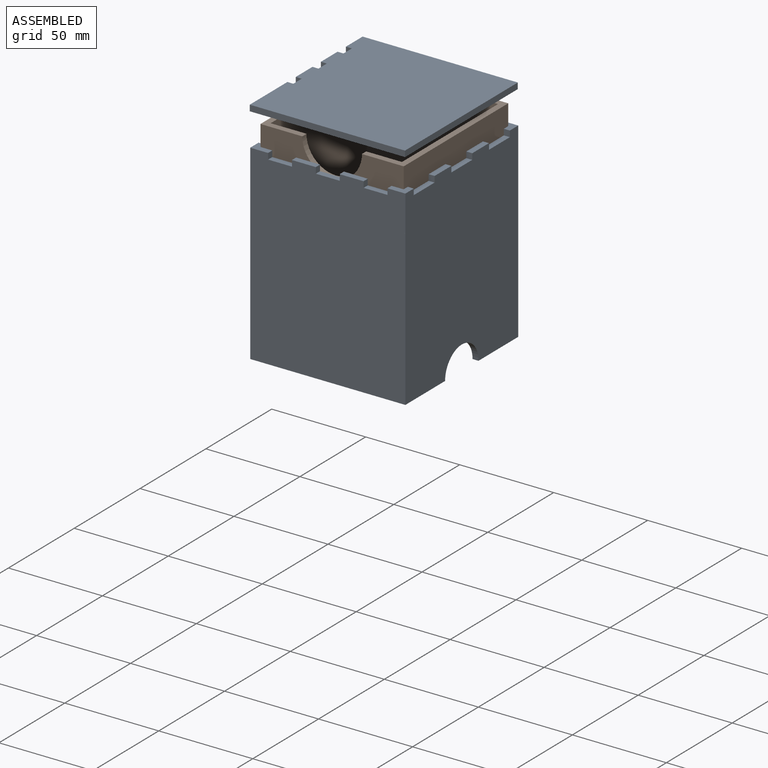
[diagram: assembled view]
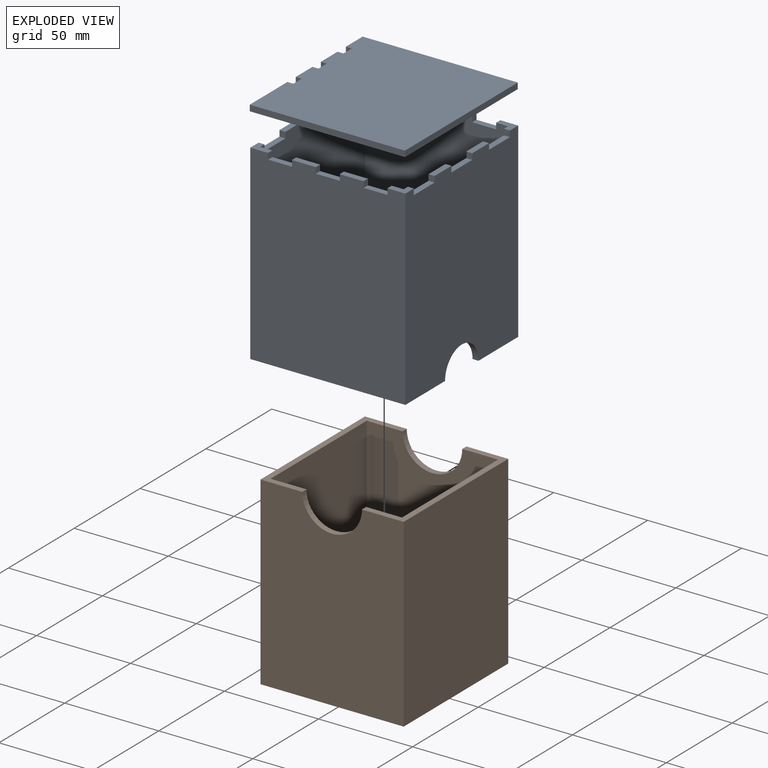
[diagram: exploded view]
GUIDED TOUR — MATED ASSEMBLY WITH SUBASSEMBLIES (Onshape document 00e461404087c15854c8ce74, AutoMate assembly 00e461404087c15854c8ce74_b9351771f8d7acd07a54468d_1669efc70e379d00489d12cd_default)

This assembly has 10 component occurrences arranged in 2 top-level units: 0 individual components plus 2 subassemblies (S0, S1). The tour has two levels: first the top level, where each subassembly is treated as one rigid unit; then each subassembly is toured internally in its own section (nesting deeper than one subassembly level is flattened into its subassembly's section).

Components are labeled P0..P9 across the whole record; subassembly units are labeled S0..S1. A mate is a constraint between two units; its type names the relative motion it leaves free:
  FASTENED — locks the two components together rigidly (no relative motion),
  SLIDER — leaves translation along the listed axis free.
Axis/direction vectors are unit vectors and 'through' points are millimeter coordinates, both in the assembly's world frame.

TOP-LEVEL MATES (between units; each subassembly's internal mates are listed in its own section)
  1. SLIDER "Slider 1": S0 <-> S1, axis (0.000, 0.000, 1.000) through (0.00, 0.00, 104.78) mm

TOP-LEVEL ASSEMBLY ORDER
  1. S0 — the base component [order verified]
  2. S1 [order verified]
Order-tag legend:
  [order verified] — this step's position reverses a verified removal order: the component was checked to insert without passing through the ones already placed.

Of the 10 component occurrences, 9 carry the full construction recipe — the FeatureScript program that regenerates the part's solid from scratch; the rest are supplied as boundary geometry only. Each toured unit is shown spotlighted twice — assembled, then exploded with a leader line back to its socket (green = recipe-attached component, orange = geometry-only, blue = subassembly unit; the rest desaturated gray).
NOTE — this tour is split across 2 documents so each fits a 32k-token context. This is document 1: the component sections continue in the remaining 1 document, each repeating the header above.
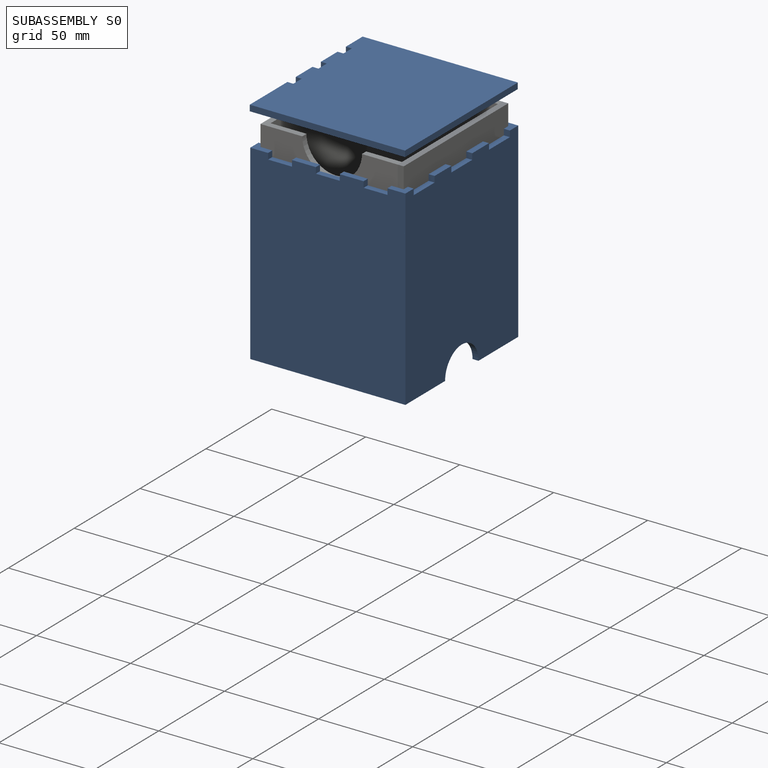
[diagram: subassembly S0 — assembled]
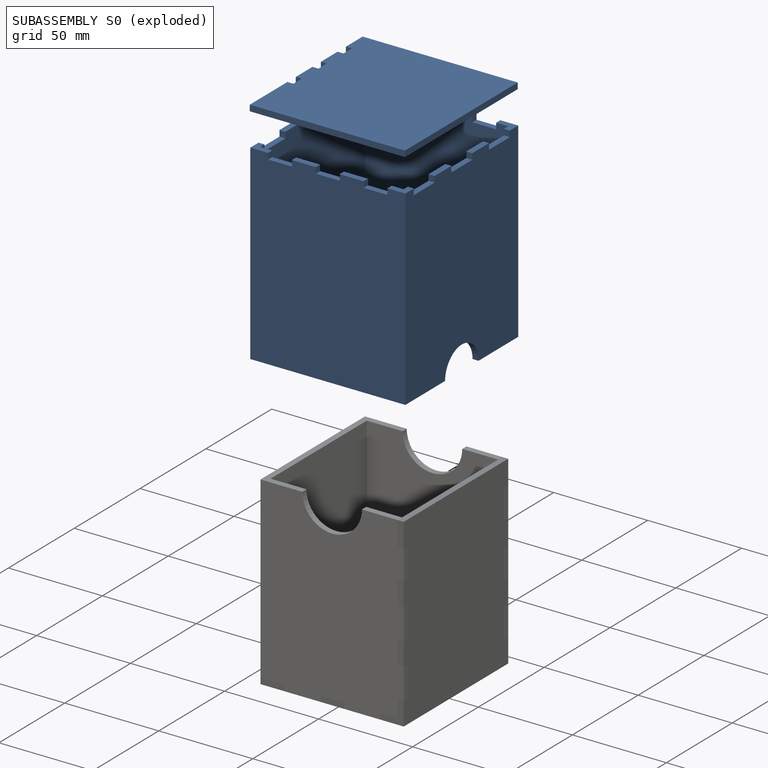
[diagram: subassembly S0 — exploded]
SUBASSEMBLY S0 — 5 components (P0, P1, P6, P7, P9), of which 4 recipe-attached; toured below.
Held by: SLIDER mate "Slider 1" to S1.
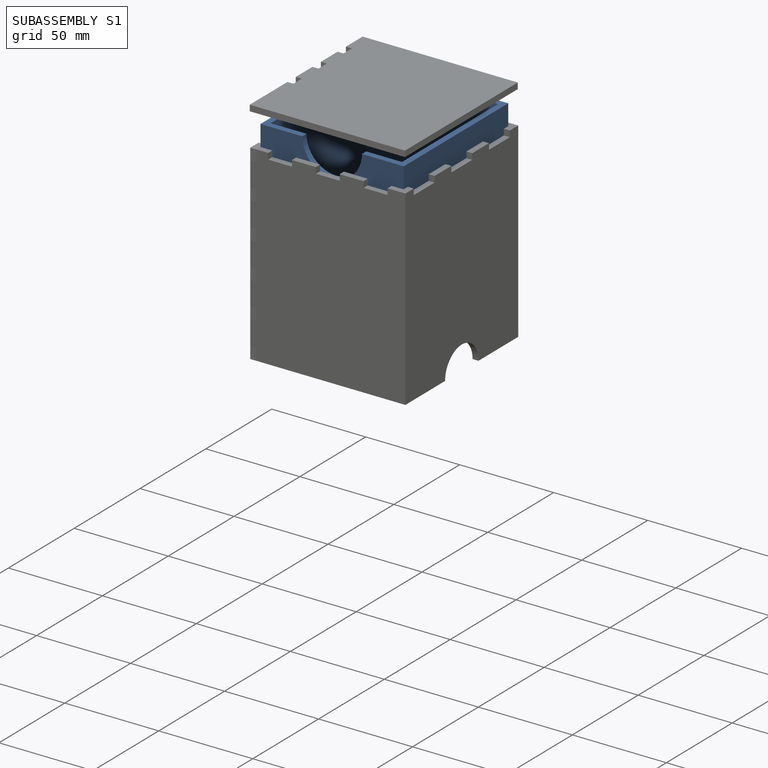
[diagram: subassembly S1 — assembled]
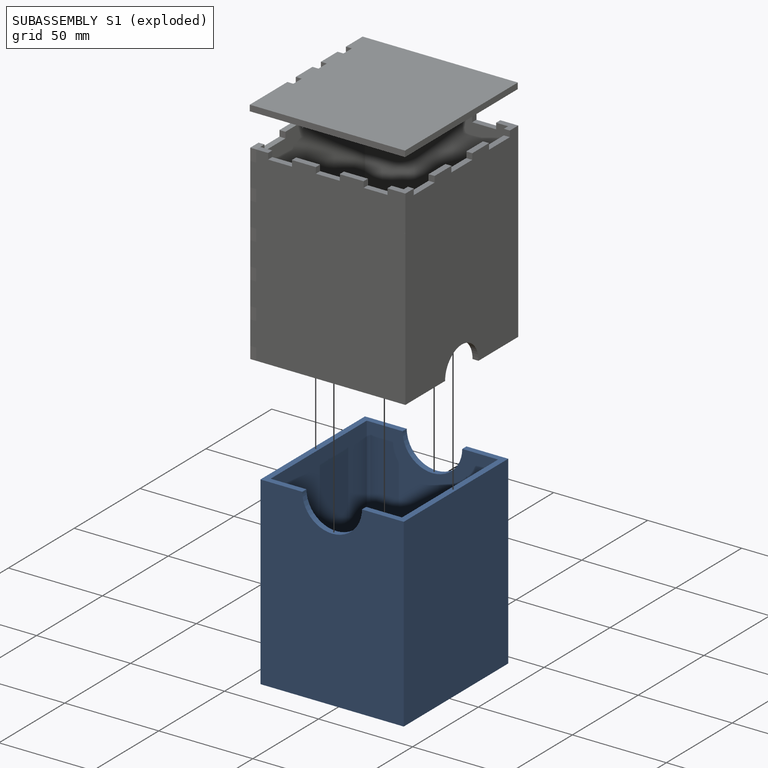
[diagram: subassembly S1 — exploded]
SUBASSEMBLY S1 — 5 components (P2, P3, P4, P5, P8), of which 5 recipe-attached; toured below.
Held by: SLIDER mate "Slider 1" to S0.
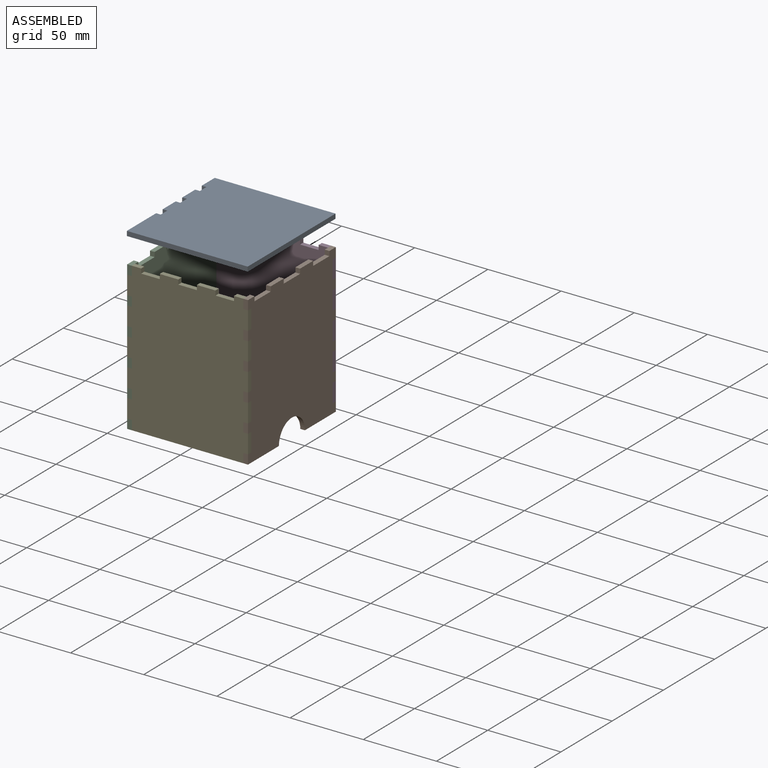
[diagram: subassembly S0 — assembled view]
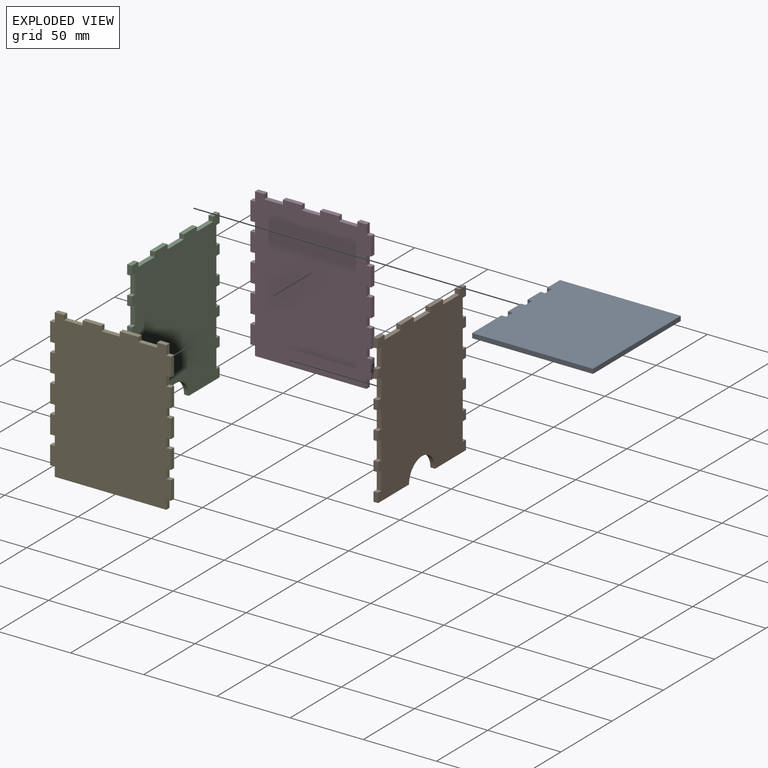
[diagram: subassembly S0 — exploded view]
SUBASSEMBLY S0 TOUR — 5 components, shown here in isolation at its own camera.

INTERNAL MATES
  1. FASTENED "Fastened 1": P1 <-> P7, direction (1.000, 0.000, 0.000) through (41.54, 39.21, -4.43) mm
  2. FASTENED "Fastened 2": P6 <-> P7, direction (0.000, 1.000, 0.000) through (-37.84, 42.38, 62.24) mm
  3. FASTENED "Fastened 3": P6 <-> P9, direction (0.000, -1.000, 0.000) through (-37.84, -43.34, 62.24) mm
  4. FASTENED "Fastened 3": P6 <-> P9, direction (0.000, -1.000, 0.000) through (-37.84, -43.34, 62.24) mm
  5. FASTENED "Fastened 2": P6 <-> P7, direction (0.000, 1.000, 0.000) through (-37.84, 42.38, 62.24) mm
  6. FASTENED "Fastened 1": P1 <-> P7, direction (1.000, 0.000, 0.000) through (41.54, 39.21, -4.43) mm

ASSEMBLY ORDER (within the subassembly)
  1. P6 — the base component [order verified]
  2. P7 [order verified]
  3. P9 [order verified]
  4. P1 [order verified]
  5. P0 [order verified]
Order-tag legend:
  [order verified] — this step's position reverses a verified removal order: the component was checked to insert without passing through the ones already placed.
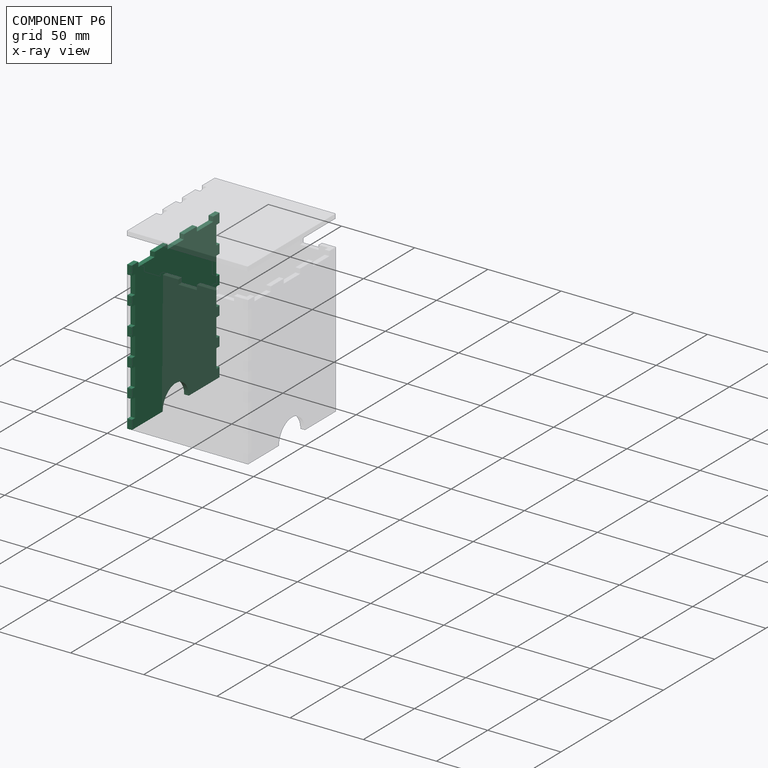
[diagram: component P6 — x-ray view]
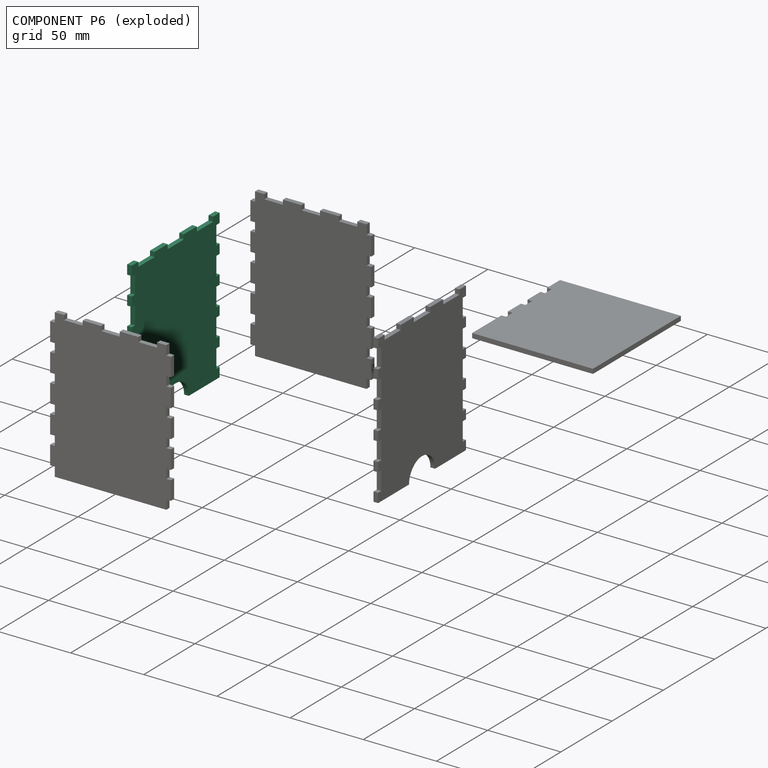
[diagram: component P6 — exploded]
COMPONENT P6 — same part as P1 (CADFS 00515019); its construction recipe is shown at P1.
Held by: FASTENED mate "Fastened 2" to P7; FASTENED mate "Fastened 3" to P9; FASTENED mate "Fastened 3" to P9; FASTENED mate "Fastened 2" to P7.
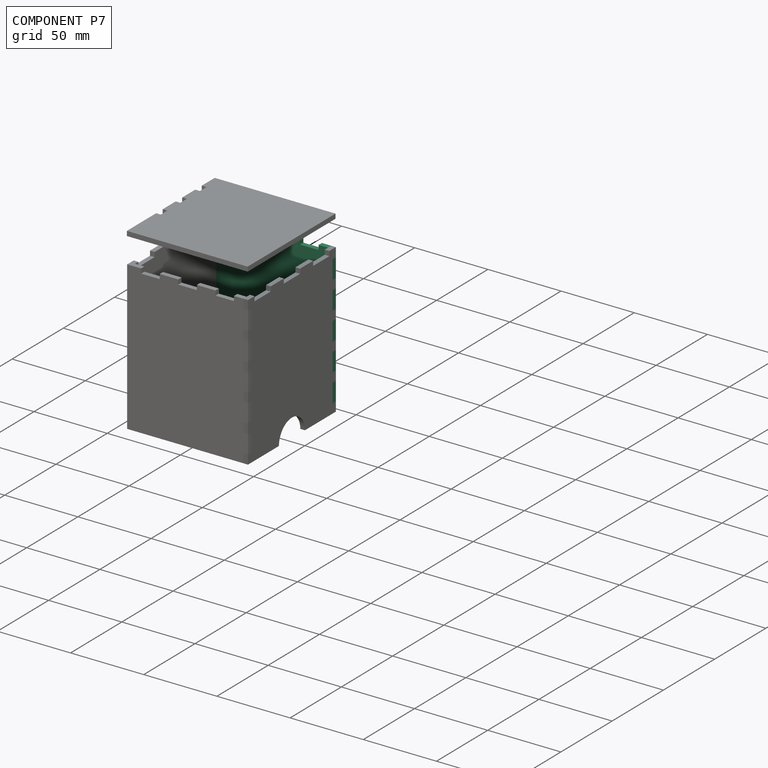
[diagram: component P7 — assembled]
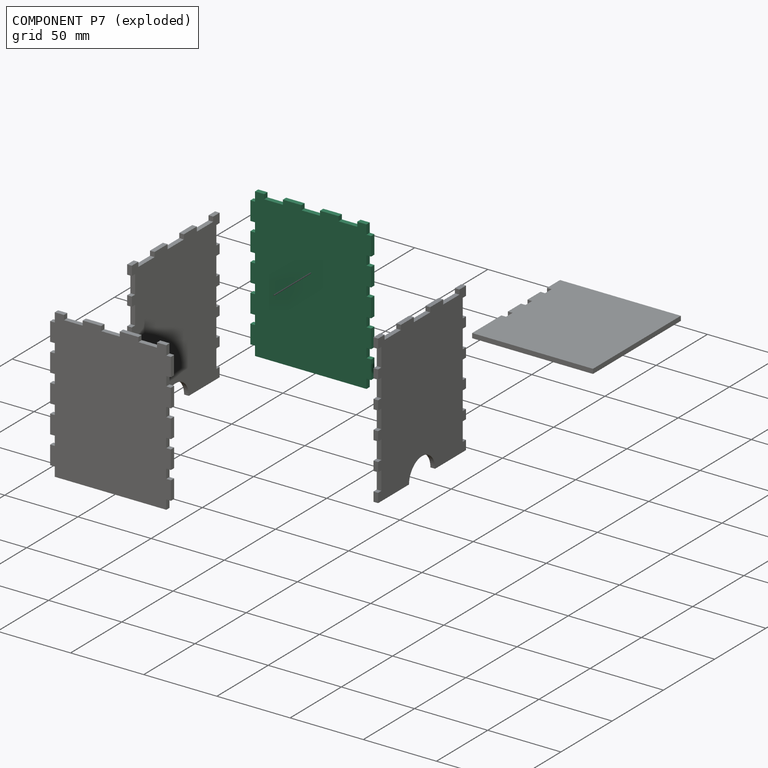
[diagram: component P7 — exploded]
COMPONENT P7 — recipe-attached (CADFS 00515017, mesh-verified: the recipe's output STEP matches this component's geometry to below the mesh-comparison resolution (tessellation chordal tolerance ~0.196 mm)).
Held by: FASTENED mate "Fastened 1" to P1; FASTENED mate "Fastened 2" to P6; FASTENED mate "Fastened 2" to P6; FASTENED mate "Fastened 1" to P1.
Construction recipe (FeatureScript — the CAD program that rebuilds this solid; sketch coordinates are in the units given by the * unit suffixes, e.g. mm):

FeatureScript 1511;
import(path : "onshape/std/geometry.fs", version : "1511.0");
import(path : "onshape/std/common.fs", version : "1511.0");
const mm = millimeter;
const VERTEX = EntityType.VERTEX;
const EDGE = EntityType.EDGE;
const FACE = EntityType.FACE;
const BODY = EntityType.BODY;
function v(x, y){return vector(x, y);}
function OD(order){return orderDisambiguation(order);}
function OSD(set){return originalSetDisambiguation(set);}
function TD(topology){return topologyDisambiguation(topology);}
function TDD(query){return trueDependencyDisambiguation(query);}
function sQuery(a, b, c) {return sketchEntityQuery(a, b, c);}

annotation { "Feature Type Name" : "Feature", "Feature Type Description" : "" }
export const myFeature = defineFeature(function(context is Context, id is Id, definition is map)
    precondition{}
    {
        {
            var Q0;
            Q0=qCreatedBy(makeId("Front.planeOp"),FACE);
            var sketch = newSketch(context, id + "F0", { "sketchPlane" : qUnion([Q0])});
            skLineSegment(sketch, "E0.bottom", {"start": v(-41.28, 50.8) * mm, "end": v(41.27, 50.8) * mm});
            skLineSegment(sketch, "E0.top", {"start": v(-41.27, -50.8) * mm, "end": v(41.28, -50.8) * mm});
            skLineSegment(sketch, "E0.left", {"start": v(-41.28, 50.8) * mm, "end": v(-41.27, -50.8) * mm});
            skLineSegment(sketch, "E0.right", {"start": v(41.27, 50.8) * mm, "end": v(41.28, -50.8) * mm});
            skSolve(sketch);
        }
        {
            var Q0;
            Q0=makeQuery(id+"F0.imprint","IMPRINT",FACE,{"disambiguationData":[TD([[makeQuery(id+"F0.imprint","IMPRINT",EDGE,{"derivedFrom":sQuery(id+"F0.wireOp",EDGE,"E0.bottom")}),-1.0]])]});
            extrude(context, id + "F1", {"entities" : qUnion([Q0]), "depth" : 3.17 * mm, "offsetDistance" : 25.4 * mm});
        }
        {
            var Q0;
            Q0=makeQuery(id+"F1.opExtrude","CAP_FACE",FACE,{"disambiguationData":[OSD([sQuery(id+"F0.wireOp",EDGE,"E0.bottom"),sQuery(id+"F0.wireOp",EDGE,"E0.top"),sQuery(id+"F0.wireOp",EDGE,"E0.left"),sQuery(id+"F0.wireOp",EDGE,"E0.right")])],"isStart":false});
            var sketch = newSketch(context, id + "F2", { "sketchPlane" : qUnion([Q0])});
            skLineSegment(sketch, "E1.bottom", {"start": v(-41.27, -50.8) * mm, "end": v(-38.1, -50.8) * mm});
            skLineSegment(sketch, "E1.top", {"start": v(-41.28, -44.45) * mm, "end": v(-38.1, -44.45) * mm});
            skLineSegment(sketch, "E1.left", {"start": v(-41.27, -50.8) * mm, "end": v(-41.27, -44.45) * mm});
            skLineSegment(sketch, "E1.right", {"start": v(-38.1, -50.8) * mm, "end": v(-38.1, -44.45) * mm});
            skLineSegment(sketch, "E2.0.1.0", {"start": v(-41.28, -25.4) * mm, "end": v(-38.1, -25.4) * mm});
            skLineSegment(sketch, "E2.0.1.1", {"start": v(-41.27, -31.75) * mm, "end": v(-38.1, -31.75) * mm});
            skLineSegment(sketch, "E2.0.1.2", {"start": v(-41.27, -31.75) * mm, "end": v(-41.27, -25.4) * mm});
            skLineSegment(sketch, "E2.0.1.3", {"start": v(-38.1, -31.75) * mm, "end": v(-38.1, -25.4) * mm});
            skLineSegment(sketch, "E2.0.2.0", {"start": v(-41.28, -6.35) * mm, "end": v(-38.1, -6.35) * mm});
            skLineSegment(sketch, "E2.0.2.1", {"start": v(-41.27, -12.7) * mm, "end": v(-38.1, -12.7) * mm});
            skLineSegment(sketch, "E2.0.2.2", {"start": v(-41.27, -12.7) * mm, "end": v(-41.27, -6.35) * mm});
            skLineSegment(sketch, "E2.0.2.3", {"start": v(-38.1, -12.7) * mm, "end": v(-38.1, -6.35) * mm});
            skLineSegment(sketch, "E2.0.3.0", {"start": v(-41.28, 12.7) * mm, "end": v(-38.1, 12.7) * mm});
            skLineSegment(sketch, "E2.0.3.1", {"start": v(-41.27, 6.35) * mm, "end": v(-38.1, 6.35) * mm});
            skLineSegment(sketch, "E2.0.3.2", {"start": v(-41.27, 6.35) * mm, "end": v(-41.27, 12.7) * mm});
            skLineSegment(sketch, "E2.0.3.3", {"start": v(-38.1, 6.35) * mm, "end": v(-38.1, 12.7) * mm});
            skLineSegment(sketch, "E2.0.4.0", {"start": v(-41.28, 31.75) * mm, "end": v(-38.1, 31.75) * mm});
            skLineSegment(sketch, "E2.0.4.1", {"start": v(-41.27, 25.4) * mm, "end": v(-38.1, 25.4) * mm});
            skLineSegment(sketch, "E2.0.4.2", {"start": v(-41.27, 25.4) * mm, "end": v(-41.27, 31.75) * mm});
            skLineSegment(sketch, "E2.0.4.3", {"start": v(-38.1, 25.4) * mm, "end": v(-38.1, 31.75) * mm});
            skLineSegment(sketch, "E2.0.5.0", {"start": v(-41.28, 50.8) * mm, "end": v(-38.1, 50.8) * mm});
            skLineSegment(sketch, "E2.0.5.1", {"start": v(-41.27, 44.45) * mm, "end": v(-38.1, 44.45) * mm});
            skLineSegment(sketch, "E2.0.5.2", {"start": v(-41.27, 44.45) * mm, "end": v(-41.27, 50.8) * mm});
            skLineSegment(sketch, "E2.0.5.3", {"start": v(-38.1, 44.45) * mm, "end": v(-38.1, 50.8) * mm});
            skLineSegment(sketch, "E2.direction1", {"start": v(-41.27, -50.8) * mm, "end": v(-15.88, -50.8) * mm, "construction": true});
            skLineSegment(sketch, "E2.direction2", {"start": v(-41.27, -50.8) * mm, "end": v(-41.27, -31.75) * mm, "construction": true});
            skLineSegment(sketch, "E3", {"start": v(0, 50.8) * mm, "end": v(0, -50.8) * mm, "construction": true});
            skLineSegment(sketch, "E4.MirrorCS", {"start": v(41.28, -50.8) * mm, "end": v(38.1, -50.8) * mm});
            skLineSegment(sketch, "E5.MirrorCS", {"start": v(41.27, -12.7) * mm, "end": v(38.1, -12.7) * mm});
            skLineSegment(sketch, "E6.MirrorCS", {"start": v(41.28, -44.45) * mm, "end": v(38.1, -44.45) * mm});
            skLineSegment(sketch, "E7.MirrorCS", {"start": v(41.27, -12.7) * mm, "end": v(41.27, -6.35) * mm});
            skLineSegment(sketch, "E8.MirrorCS", {"start": v(41.28, 12.7) * mm, "end": v(38.1, 12.7) * mm});
            skLineSegment(sketch, "E9.MirrorCS", {"start": v(41.28, -25.4) * mm, "end": v(38.1, -25.4) * mm});
            skLineSegment(sketch, "E10.MirrorCS", {"start": v(41.27, 25.4) * mm, "end": v(38.1, 25.4) * mm});
            skLineSegment(sketch, "E11.MirrorCS", {"start": v(41.28, -50.8) * mm, "end": v(41.28, -44.45) * mm});
            skLineSegment(sketch, "E12.MirrorCS", {"start": v(41.27, -31.75) * mm, "end": v(41.27, -25.4) * mm});
            skLineSegment(sketch, "E13.MirrorCS", {"start": v(41.27, 44.45) * mm, "end": v(38.1, 44.45) * mm});
            skLineSegment(sketch, "E14.MirrorCS", {"start": v(38.1, 44.45) * mm, "end": v(38.1, 50.8) * mm});
            skLineSegment(sketch, "E15.MirrorCS", {"start": v(41.27, 6.35) * mm, "end": v(38.1, 6.35) * mm});
            skLineSegment(sketch, "E16.MirrorCS", {"start": v(41.28, -6.35) * mm, "end": v(38.1, -6.35) * mm});
            skLineSegment(sketch, "E17.MirrorCS", {"start": v(38.1, 6.35) * mm, "end": v(38.1, 12.7) * mm});
            skLineSegment(sketch, "E18.MirrorCS", {"start": v(41.27, 6.35) * mm, "end": v(41.27, 12.7) * mm});
            skLineSegment(sketch, "E19.MirrorCS", {"start": v(41.28, -31.75) * mm, "end": v(38.1, -31.75) * mm});
            skLineSegment(sketch, "E20.MirrorCS", {"start": v(41.27, 44.45) * mm, "end": v(41.27, 50.8) * mm});
            skLineSegment(sketch, "E21.MirrorCS", {"start": v(41.28, 50.8) * mm, "end": v(38.1, 50.8) * mm});
            skLineSegment(sketch, "E22.MirrorCS", {"start": v(41.28, 31.75) * mm, "end": v(38.1, 31.75) * mm});
            skLineSegment(sketch, "E23.MirrorCS", {"start": v(38.1, -12.7) * mm, "end": v(38.1, -6.35) * mm});
            skLineSegment(sketch, "E24.MirrorCS", {"start": v(38.1, -31.75) * mm, "end": v(38.1, -25.4) * mm});
            skLineSegment(sketch, "E25.MirrorCS", {"start": v(38.1, -50.8) * mm, "end": v(38.1, -44.45) * mm});
            skLineSegment(sketch, "E26.MirrorCS", {"start": v(41.27, 25.4) * mm, "end": v(41.27, 31.75) * mm});
            skLineSegment(sketch, "E27.MirrorCS", {"start": v(38.1, 25.4) * mm, "end": v(38.1, 31.75) * mm});
            skLineSegment(sketch, "E28.MirrorCS", {"start": v(41.28, -50.8) * mm, "end": v(15.88, -50.8) * mm, "construction": true});
            skLineSegment(sketch, "E29.MirrorCS", {"start": v(41.28, -50.8) * mm, "end": v(41.28, -31.75) * mm, "construction": true});
            skSolve(sketch);
        }
        {
            var Q0;
            Q0=qSketchRegion(id+"F2",true);
            extrude(context, id + "F3", {"entities" : qUnion([Q0]), "operationType" : NewBodyOperationType.REMOVE, "endBound" : BoundingType.THROUGH_ALL, "oppositeDirection" : true, "depth" : 25.4 * mm, "offsetDistance" : 25.4 * mm});
        }
        {
            var Q0;
            Q0=makeQuery(id+"F1.opExtrude","CAP_FACE",FACE,{"disambiguationData":[OSD([sQuery(id+"F0.wireOp",EDGE,"E0.bottom"),sQuery(id+"F0.wireOp",EDGE,"E0.top"),sQuery(id+"F0.wireOp",EDGE,"E0.left"),sQuery(id+"F0.wireOp",EDGE,"E0.right")])],"isStart":false});
            var sketch = newSketch(context, id + "F4", { "sketchPlane" : qUnion([Q0])});
            skLineSegment(sketch, "E30.bottom", {"start": v(-31.75, 50.8) * mm, "end": v(-19.05, 50.8) * mm});
            skLineSegment(sketch, "E30.top", {"start": v(-31.75, 47.62) * mm, "end": v(-19.05, 47.62) * mm});
            skLineSegment(sketch, "E30.left", {"start": v(-31.75, 50.8) * mm, "end": v(-31.75, 47.62) * mm});
            skLineSegment(sketch, "E30.right", {"start": v(-19.05, 50.8) * mm, "end": v(-19.05, 47.62) * mm});
            skLineSegment(sketch, "E31.1.0.0", {"start": v(-6.35, 50.8) * mm, "end": v(-6.35, 47.62) * mm});
            skLineSegment(sketch, "E31.1.0.1", {"start": v(-6.35, 47.62) * mm, "end": v(6.35, 47.62) * mm});
            skLineSegment(sketch, "E31.1.0.2", {"start": v(6.35, 50.8) * mm, "end": v(6.35, 47.62) * mm});
            skLineSegment(sketch, "E31.1.0.3", {"start": v(-6.35, 50.8) * mm, "end": v(6.35, 50.8) * mm});
            skLineSegment(sketch, "E31.2.0.0", {"start": v(19.05, 50.8) * mm, "end": v(19.05, 47.62) * mm});
            skLineSegment(sketch, "E31.2.0.1", {"start": v(19.05, 47.62) * mm, "end": v(31.75, 47.62) * mm});
            skLineSegment(sketch, "E31.2.0.2", {"start": v(31.75, 50.8) * mm, "end": v(31.75, 47.62) * mm});
            skLineSegment(sketch, "E31.2.0.3", {"start": v(19.05, 50.8) * mm, "end": v(31.75, 50.8) * mm});
            skLineSegment(sketch, "E31.direction1", {"start": v(-31.75, 47.62) * mm, "end": v(-6.35, 47.62) * mm, "construction": true});
            skSolve(sketch);
        }
        {
            var Q0;
            Q0=qSketchRegion(id+"F4",true);
            extrude(context, id + "F5", {"entities" : qUnion([Q0]), "operationType" : NewBodyOperationType.REMOVE, "endBound" : BoundingType.THROUGH_ALL, "oppositeDirection" : true, "depth" : 25.4 * mm, "offsetDistance" : 25.4 * mm});
        }
    });
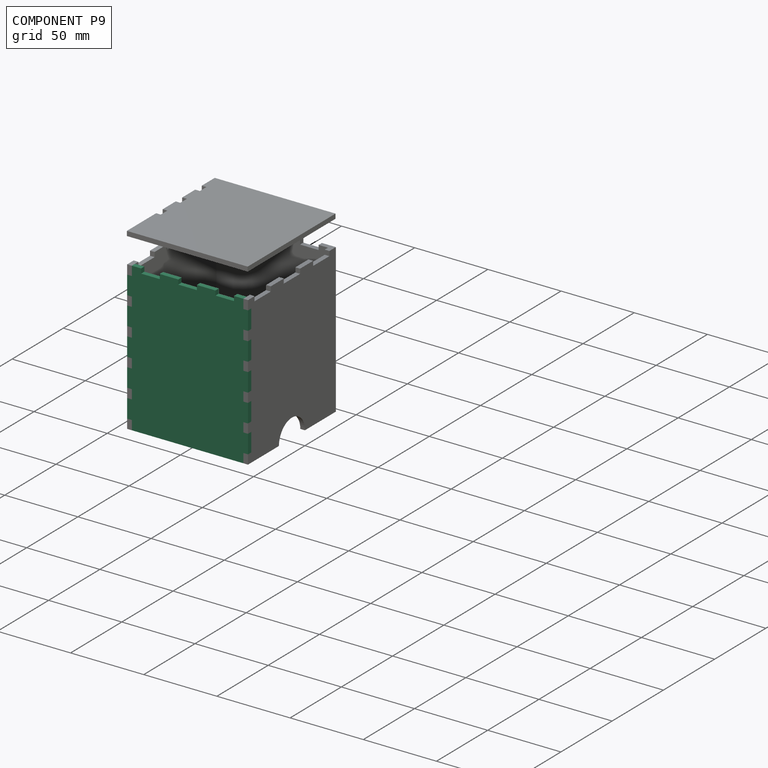
[diagram: component P9 — assembled]
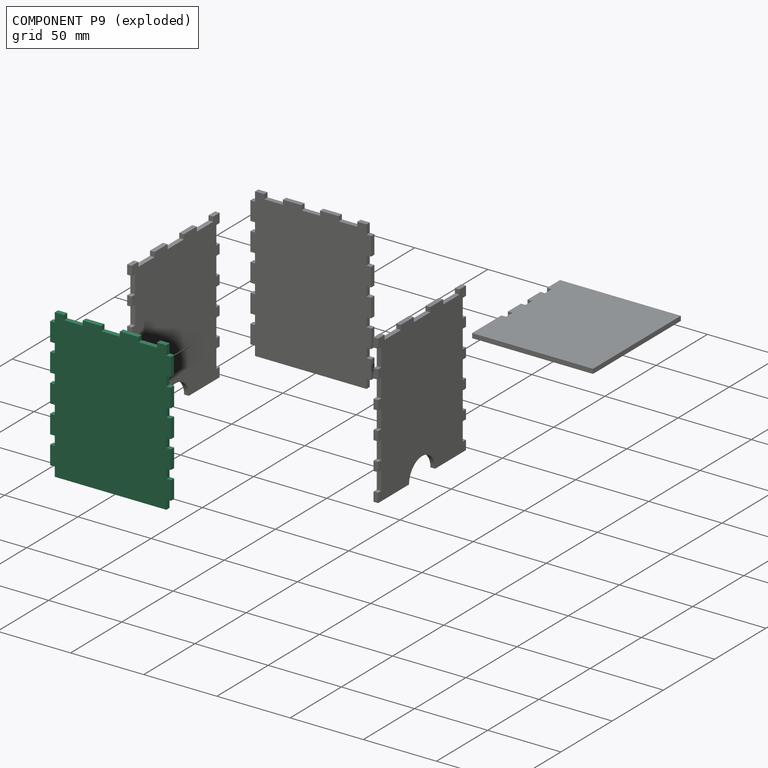
[diagram: component P9 — exploded]
COMPONENT P9 — same part as P7 (CADFS 00515017); its construction recipe is shown at P7.
Held by: FASTENED mate "Fastened 3" to P6; FASTENED mate "Fastened 3" to P6.
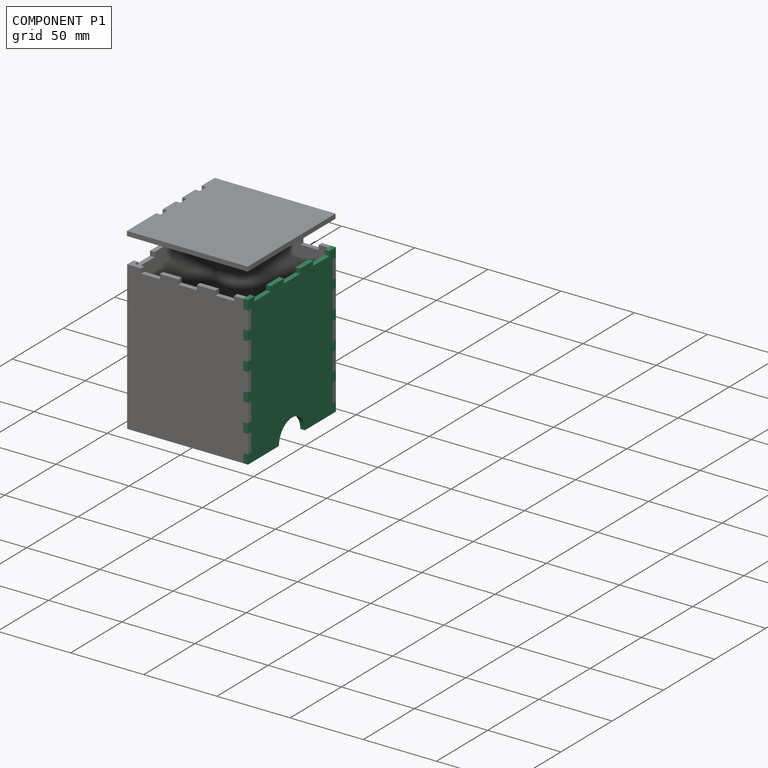
[diagram: component P1 — assembled]
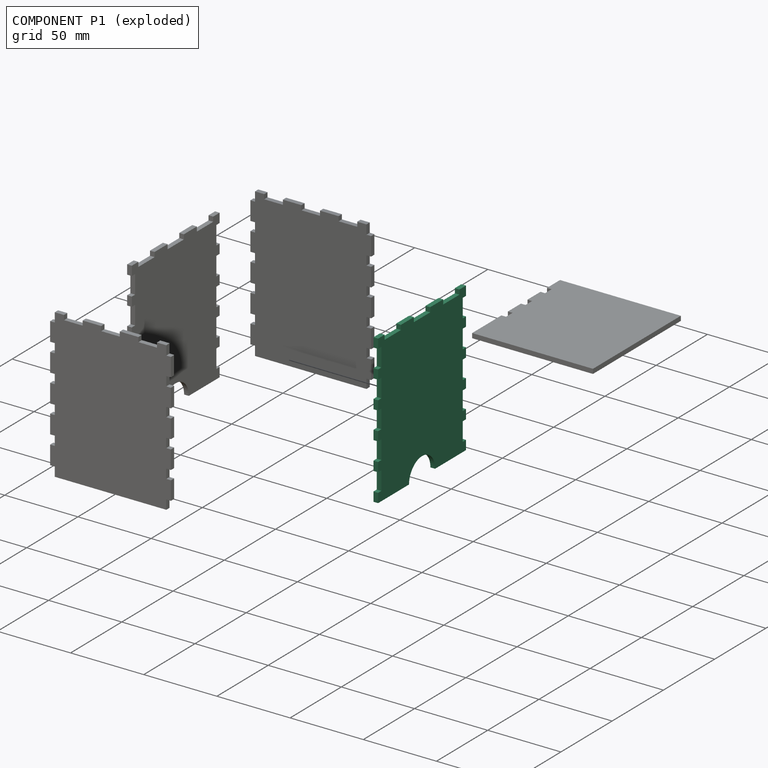
[diagram: component P1 — exploded]
COMPONENT P1 — recipe-attached (CADFS 00515019, mesh-verified: the recipe's output STEP matches this component's geometry to below the mesh-comparison resolution (tessellation chordal tolerance ~0.199 mm)).
Held by: FASTENED mate "Fastened 1" to P7; FASTENED mate "Fastened 1" to P7.
Construction recipe (FeatureScript — the CAD program that rebuilds this solid; sketch coordinates are in the units given by the * unit suffixes, e.g. mm):

FeatureScript 1511;
import(path : "onshape/std/geometry.fs", version : "1511.0");
import(path : "onshape/std/common.fs", version : "1511.0");
const mm = millimeter;
const VERTEX = EntityType.VERTEX;
const EDGE = EntityType.EDGE;
const FACE = EntityType.FACE;
const BODY = EntityType.BODY;
function v(x, y){return vector(x, y);}
function OD(order){return orderDisambiguation(order);}
function OSD(set){return originalSetDisambiguation(set);}
function TD(topology){return topologyDisambiguation(topology);}
function TDD(query){return trueDependencyDisambiguation(query);}
function sQuery(a, b, c) {return sketchEntityQuery(a, b, c);}

annotation { "Feature Type Name" : "Feature", "Feature Type Description" : "" }
export const myFeature = defineFeature(function(context is Context, id is Id, definition is map)
    precondition{}
    {
        {
            var Q0;
            Q0=qCreatedBy(makeId("Right.planeOp"),FACE);
            var sketch = newSketch(context, id + "F0", { "sketchPlane" : qUnion([Q0])});
            skLineSegment(sketch, "E0.bottom", {"start": v(-42.86, 50.8) * mm, "end": v(42.86, 50.8) * mm});
            skLineSegment(sketch, "E0.top", {"start": v(-42.86, -50.8) * mm, "end": v(42.86, -50.8) * mm});
            skLineSegment(sketch, "E0.left", {"start": v(-42.86, 50.8) * mm, "end": v(-42.86, -50.8) * mm});
            skLineSegment(sketch, "E0.right", {"start": v(42.86, 50.8) * mm, "end": v(42.86, -50.8) * mm});
            skSolve(sketch);
        }
        {
            var Q0;
            Q0=qSketchRegion(id+"F0",true);
            extrude(context, id + "F1", {"entities" : qUnion([Q0]), "depth" : 3.17 * mm, "offsetDistance" : 25.4 * mm});
        }
        {
            var Q0;
            Q0=makeQuery(id+"F1.opExtrude","CAP_FACE",FACE,{"disambiguationData":[OSD([sQuery(id+"F0.wireOp",EDGE,"E0.bottom"),sQuery(id+"F0.wireOp",EDGE,"E0.top"),sQuery(id+"F0.wireOp",EDGE,"E0.left"),sQuery(id+"F0.wireOp",EDGE,"E0.right")])],"isStart":false});
            var sketch = newSketch(context, id + "F2", { "sketchPlane" : qUnion([Q0])});
            skLineSegment(sketch, "E1.bottom", {"start": v(-42.86, -44.45) * mm, "end": v(-39.69, -44.45) * mm});
            skLineSegment(sketch, "E1.top", {"start": v(-42.86, -31.75) * mm, "end": v(-39.69, -31.75) * mm});
            skLineSegment(sketch, "E1.left", {"start": v(-42.86, -44.45) * mm, "end": v(-42.86, -31.75) * mm});
            skLineSegment(sketch, "E1.right", {"start": v(-39.69, -44.45) * mm, "end": v(-39.69, -31.75) * mm});
            skLineSegment(sketch, "E2.0.1.0", {"start": v(-39.69, -25.4) * mm, "end": v(-39.69, -12.7) * mm});
            skLineSegment(sketch, "E2.0.1.1", {"start": v(-42.86, -25.4) * mm, "end": v(-42.86, -12.7) * mm});
            skLineSegment(sketch, "E2.0.1.2", {"start": v(-42.86, -12.7) * mm, "end": v(-39.69, -12.7) * mm});
            skLineSegment(sketch, "E2.0.1.3", {"start": v(-42.86, -25.4) * mm, "end": v(-39.69, -25.4) * mm});
            skLineSegment(sketch, "E2.0.2.0", {"start": v(-39.69, -6.35) * mm, "end": v(-39.69, 6.35) * mm});
            skLineSegment(sketch, "E2.0.2.1", {"start": v(-42.86, -6.35) * mm, "end": v(-42.86, 6.35) * mm});
            skLineSegment(sketch, "E2.0.2.2", {"start": v(-42.86, 6.35) * mm, "end": v(-39.69, 6.35) * mm});
            skLineSegment(sketch, "E2.0.2.3", {"start": v(-42.86, -6.35) * mm, "end": v(-39.69, -6.35) * mm});
            skLineSegment(sketch, "E2.0.3.0", {"start": v(-39.69, 12.7) * mm, "end": v(-39.69, 25.4) * mm});
            skLineSegment(sketch, "E2.0.3.1", {"start": v(-42.86, 12.7) * mm, "end": v(-42.86, 25.4) * mm});
            skLineSegment(sketch, "E2.0.3.2", {"start": v(-42.86, 25.4) * mm, "end": v(-39.69, 25.4) * mm});
            skLineSegment(sketch, "E2.0.3.3", {"start": v(-42.86, 12.7) * mm, "end": v(-39.69, 12.7) * mm});
            skLineSegment(sketch, "E2.direction1", {"start": v(-42.86, -44.45) * mm, "end": v(-17.46, -44.45) * mm, "construction": true});
            skLineSegment(sketch, "E2.direction2", {"start": v(-42.86, -44.45) * mm, "end": v(-42.86, -25.4) * mm, "construction": true});
            skLineSegment(sketch, "E3.0.0.4", {"start": v(-39.69, 31.75) * mm, "end": v(-39.69, 44.45) * mm});
            skLineSegment(sketch, "E3.3.0.4", {"start": v(-42.86, 31.75) * mm, "end": v(-42.86, 44.45) * mm});
            skLineSegment(sketch, "E3.6.0.4", {"start": v(-42.86, 44.45) * mm, "end": v(-39.69, 44.45) * mm});
            skLineSegment(sketch, "E3.9.0.4", {"start": v(-42.86, 31.75) * mm, "end": v(-39.69, 31.75) * mm});
            skLineSegment(sketch, "E4", {"start": v(0, 50.8) * mm, "end": v(0, -50.8) * mm, "construction": true});
            skLineSegment(sketch, "E5.MirrorCS", {"start": v(42.86, -44.45) * mm, "end": v(39.69, -44.45) * mm});
            skLineSegment(sketch, "E6.MirrorCS", {"start": v(42.86, -25.4) * mm, "end": v(39.69, -25.4) * mm});
            skLineSegment(sketch, "E7.MirrorCS", {"start": v(42.86, 31.75) * mm, "end": v(39.69, 31.75) * mm});
            skLineSegment(sketch, "E8.MirrorCS", {"start": v(42.86, 12.7) * mm, "end": v(39.69, 12.7) * mm});
            skLineSegment(sketch, "E9.MirrorCS", {"start": v(42.86, -31.75) * mm, "end": v(39.69, -31.75) * mm});
            skLineSegment(sketch, "E10.MirrorCS", {"start": v(42.86, 25.4) * mm, "end": v(39.69, 25.4) * mm});
            skLineSegment(sketch, "E11.MirrorCS", {"start": v(42.86, -12.7) * mm, "end": v(39.69, -12.7) * mm});
            skLineSegment(sketch, "E12.MirrorCS", {"start": v(42.86, 6.35) * mm, "end": v(39.69, 6.35) * mm});
            skLineSegment(sketch, "E13.MirrorCS", {"start": v(42.86, 44.45) * mm, "end": v(39.69, 44.45) * mm});
            skLineSegment(sketch, "E14.MirrorCS", {"start": v(42.86, -6.35) * mm, "end": v(39.69, -6.35) * mm});
            skLineSegment(sketch, "E15.MirrorCS", {"start": v(42.86, -44.45) * mm, "end": v(42.86, -31.75) * mm});
            skLineSegment(sketch, "E16.MirrorCS", {"start": v(39.69, 31.75) * mm, "end": v(39.69, 44.45) * mm});
            skLineSegment(sketch, "E17.MirrorCS", {"start": v(42.86, -25.4) * mm, "end": v(42.86, -12.7) * mm});
            skLineSegment(sketch, "E18.MirrorCS", {"start": v(39.69, -25.4) * mm, "end": v(39.69, -12.7) * mm});
            skLineSegment(sketch, "E19.MirrorCS", {"start": v(42.86, 12.7) * mm, "end": v(42.86, 25.4) * mm});
            skLineSegment(sketch, "E20.MirrorCS", {"start": v(42.86, -6.35) * mm, "end": v(42.86, 6.35) * mm});
            skLineSegment(sketch, "E21.MirrorCS", {"start": v(39.69, -44.45) * mm, "end": v(39.69, -31.75) * mm});
            skLineSegment(sketch, "E22.MirrorCS", {"start": v(39.69, -6.35) * mm, "end": v(39.69, 6.35) * mm});
            skLineSegment(sketch, "E23.MirrorCS", {"start": v(42.86, -44.45) * mm, "end": v(42.86, -25.4) * mm, "construction": true});
            skLineSegment(sketch, "E24.MirrorCS", {"start": v(39.69, 12.7) * mm, "end": v(39.69, 25.4) * mm});
            skLineSegment(sketch, "E25.MirrorCS", {"start": v(42.86, 31.75) * mm, "end": v(42.86, 44.45) * mm});
            skSolve(sketch);
        }
        {
            var Q0;
            Q0=qSketchRegion(id+"F2",true);
            extrude(context, id + "F3", {"entities" : qUnion([Q0]), "operationType" : NewBodyOperationType.REMOVE, "endBound" : BoundingType.THROUGH_ALL, "oppositeDirection" : true, "depth" : 25.4 * mm, "offsetDistance" : 25.4 * mm});
        }
        {
            var Q0;
            Q0=makeQuery(id+"F1.opExtrude","CAP_FACE",FACE,{"disambiguationData":[OSD([sQuery(id+"F0.wireOp",EDGE,"E0.bottom"),sQuery(id+"F0.wireOp",EDGE,"E0.top"),sQuery(id+"F0.wireOp",EDGE,"E0.left"),sQuery(id+"F0.wireOp",EDGE,"E0.right")])],"isStart":false});
            var sketch = newSketch(context, id + "F4", { "sketchPlane" : qUnion([Q0])});
            skLineSegment(sketch, "E26.bottom", {"start": v(-36.51, 50.8) * mm, "end": v(-20.64, 50.8) * mm});
            skLineSegment(sketch, "E26.top", {"start": v(-36.51, 47.62) * mm, "end": v(-20.64, 47.62) * mm});
            skLineSegment(sketch, "E26.left", {"start": v(-36.51, 50.8) * mm, "end": v(-36.51, 47.62) * mm});
            skLineSegment(sketch, "E26.right", {"start": v(-20.64, 50.8) * mm, "end": v(-20.64, 47.62) * mm});
            skLineSegment(sketch, "E27.1.0.0", {"start": v(-7.94, 50.8) * mm, "end": v(7.94, 50.8) * mm});
            skLineSegment(sketch, "E27.1.0.1", {"start": v(-7.94, 47.62) * mm, "end": v(7.94, 47.62) * mm});
            skLineSegment(sketch, "E27.1.0.2", {"start": v(7.94, 50.8) * mm, "end": v(7.94, 47.62) * mm});
            skLineSegment(sketch, "E27.1.0.3", {"start": v(-7.94, 50.8) * mm, "end": v(-7.94, 47.62) * mm});
            skLineSegment(sketch, "E27.2.0.0", {"start": v(20.64, 50.8) * mm, "end": v(36.51, 50.8) * mm});
            skLineSegment(sketch, "E27.2.0.1", {"start": v(20.64, 47.62) * mm, "end": v(36.51, 47.62) * mm});
            skLineSegment(sketch, "E27.2.0.2", {"start": v(36.51, 50.8) * mm, "end": v(36.51, 47.62) * mm});
            skLineSegment(sketch, "E27.2.0.3", {"start": v(20.64, 50.8) * mm, "end": v(20.64, 47.62) * mm});
            skLineSegment(sketch, "E27.direction1", {"start": v(-36.51, 47.62) * mm, "end": v(-7.94, 47.62) * mm, "construction": true});
            skSolve(sketch);
        }
        {
            var Q0;
            Q0=qSketchRegion(id+"F4",true);
            extrude(context, id + "F5", {"entities" : qUnion([Q0]), "operationType" : NewBodyOperationType.REMOVE, "endBound" : BoundingType.THROUGH_ALL, "oppositeDirection" : true, "depth" : 25.4 * mm, "offsetDistance" : 25.4 * mm});
        }
        {
            var Q0;
            Q0=makeQuery(id+"F1.opExtrude","CAP_FACE",FACE,{"disambiguationData":[OSD([sQuery(id+"F0.wireOp",EDGE,"E0.bottom"),sQuery(id+"F0.wireOp",EDGE,"E0.top"),sQuery(id+"F0.wireOp",EDGE,"E0.left"),sQuery(id+"F0.wireOp",EDGE,"E0.right")])],"isStart":false});
            var sketch = newSketch(context, id + "F6", { "sketchPlane" : qUnion([Q0])});
            skEllipse(sketch, "E28", {"center": v(0, -50.8) * mm, "majorRadius": 12.7 * mm, "minorRadius": 12.7 * mm, "majorAxis": v(1, 0)});
            skSolve(sketch);
        }
        {
            var Q0;
            Q0 = qSketchRegion(id + "F6", true);
            extrude(context, id + "F7", {"entities" : qUnion([Q0]), "operationType" : NewBodyOperationType.REMOVE, "endBound" : BoundingType.THROUGH_ALL, "oppositeDirection" : true, "depth" : 25.4 * mm, "offsetDistance" : 25.4 * mm});
        }
    });
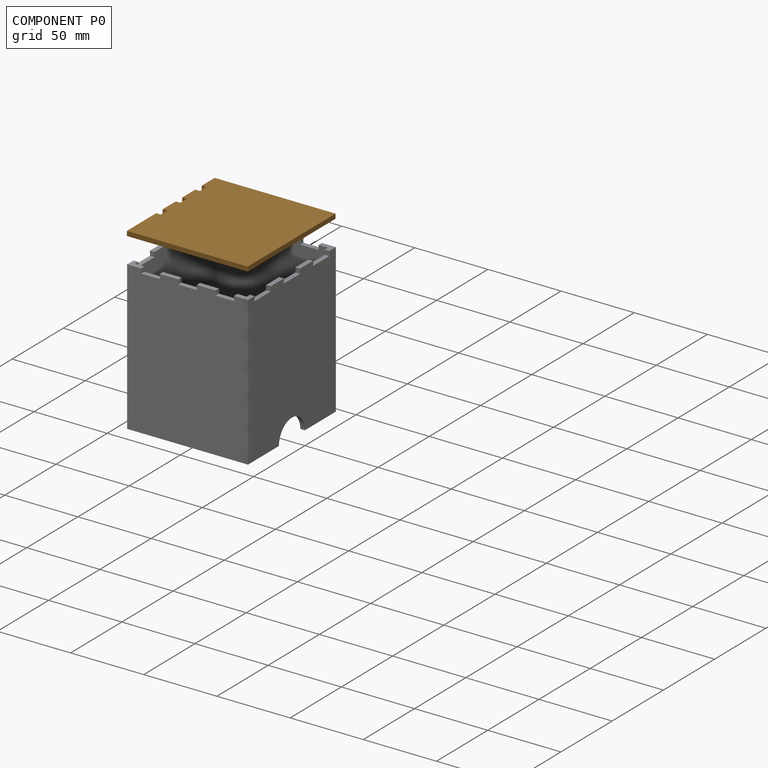
[diagram: component P0 — assembled]
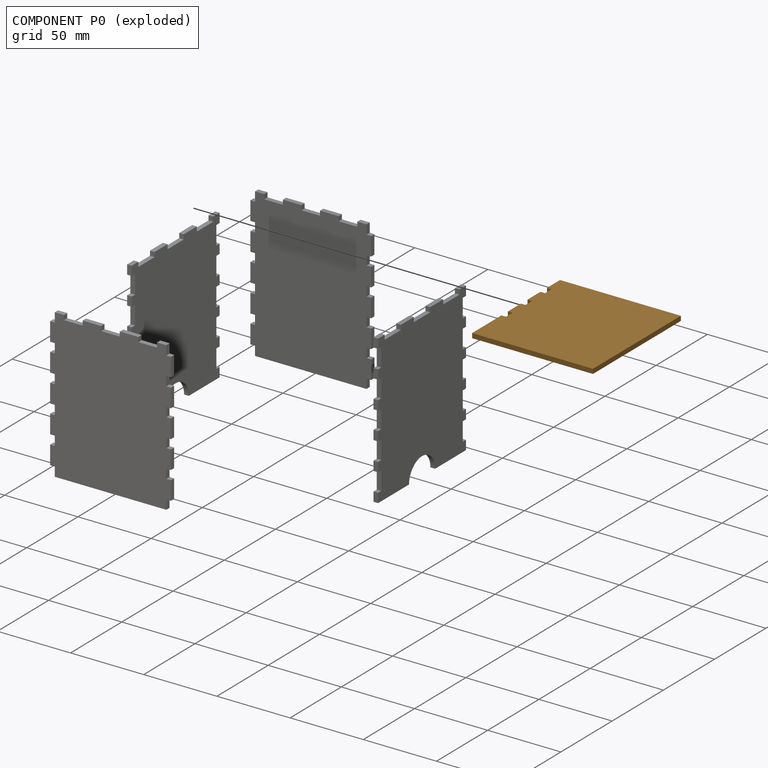
[diagram: component P0 — exploded]
COMPONENT P0 — geometry summary (no construction recipe available for this part):
  bounding box: 85.7 x 82.6 x 3.2 mm
  B-rep topology: 1 solid, 18 faces, 96 edges
  volume: 22276 mm^3 (99% of its bounding box)
  symmetry: mirror-symmetric across its z mid-plane
Held by: no mates (free).
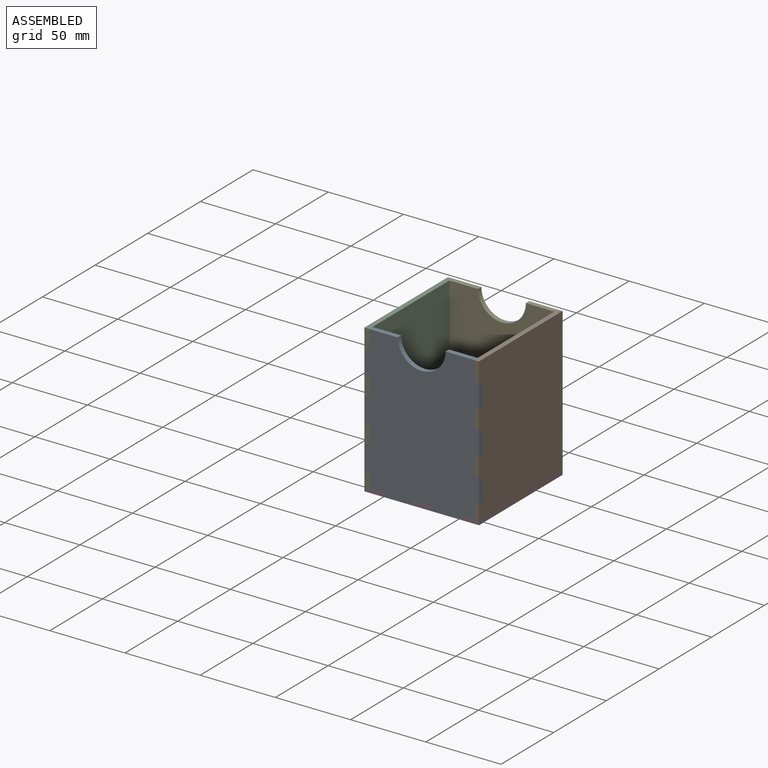
[diagram: subassembly S1 — assembled view]
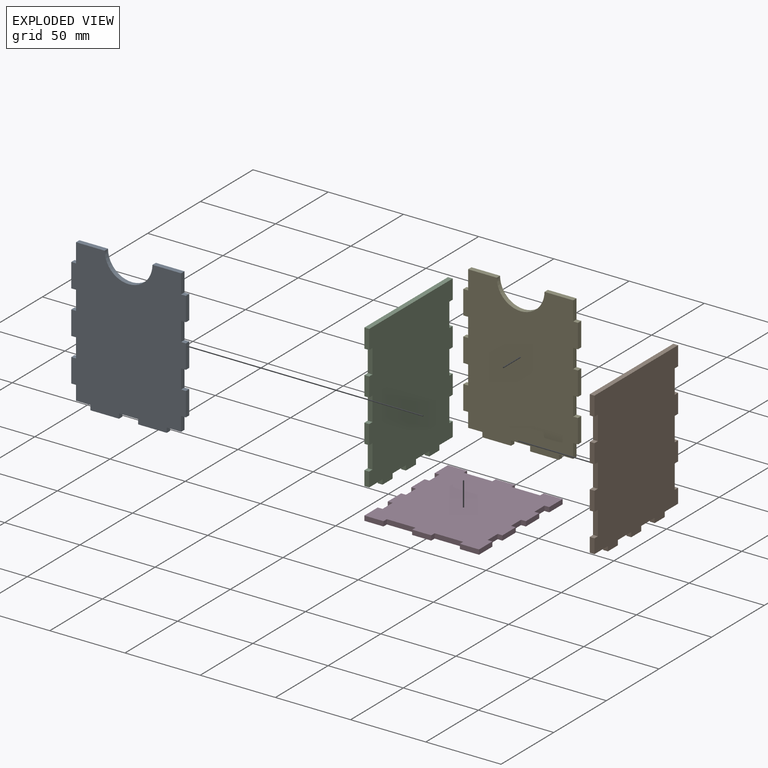
[diagram: subassembly S1 — exploded view]
SUBASSEMBLY S1 TOUR — 5 components, shown here in isolation at its own camera.

INTERNAL MATES
  1. FASTENED "Fastened 2": P3 <-> P8, direction (1.000, 0.000, 0.000) through (38.10, 36.51, 17.46) mm
  2. FASTENED "Fastened 4": P8 <-> P5, direction (0.000, 0.000, -1.000) through (15.88, 36.51, -3.18) mm
  3. FASTENED "Fastened 1": P4 <-> P8, direction (-1.000, 0.000, 0.000) through (-38.10, 36.51, 17.46) mm
  4. FASTENED "Fastened 3": P2 <-> P3, direction (1.000, 0.000, 0.000) through (38.10, -36.51, 17.46) mm
  5. FASTENED "Fastened 1": P4 <-> P8, direction (-1.000, 0.000, 0.000) through (-38.10, 36.51, 17.46) mm
  6. FASTENED "Fastened 4": P8 <-> P5, direction (0.000, 0.000, -1.000) through (15.88, 36.51, -3.18) mm
  7. FASTENED "Fastened 2": P3 <-> P8, direction (1.000, 0.000, 0.000) through (38.10, 36.51, 17.46) mm
  8. FASTENED "Fastened 3": P2 <-> P3, direction (1.000, 0.000, 0.000) through (38.10, -36.51, 17.46) mm

ASSEMBLY ORDER (within the subassembly)
  1. P4 — the base component [order verified]
  2. P2 [order verified]
  3. P8 [order verified]
  4. P3 [order verified]
  5. P5 [order verified]
Order-tag legend:
  [order verified] — this step's position reverses a verified removal order: the component was checked to insert without passing through the ones already placed.
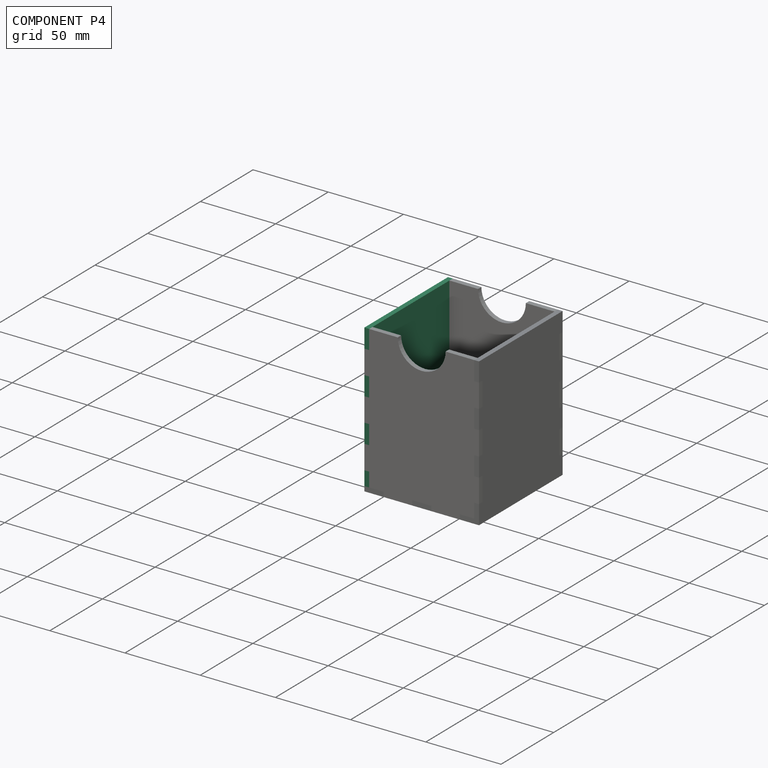
[diagram: component P4 — assembled]
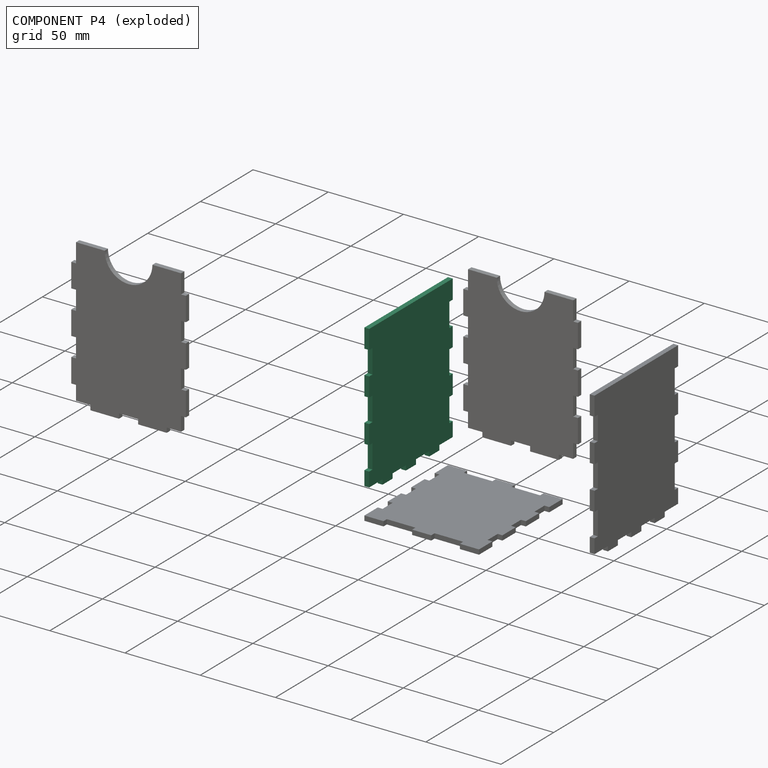
[diagram: component P4 — exploded]
COMPONENT P4 — same part as P3 (CADFS 00515018); its construction recipe is shown at P3.
Held by: FASTENED mate "Fastened 1" to P8; FASTENED mate "Fastened 1" to P8.
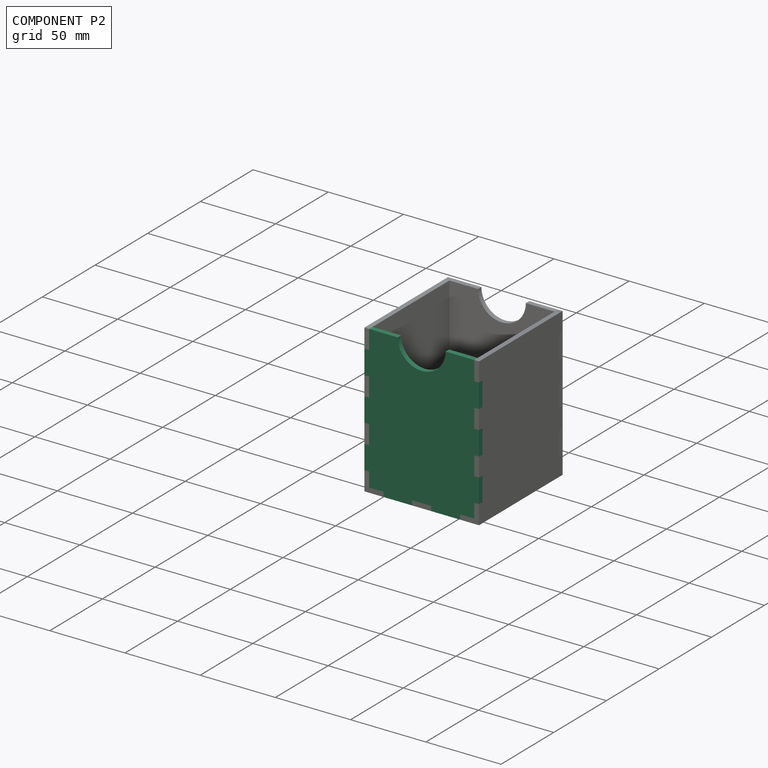
[diagram: component P2 — assembled]
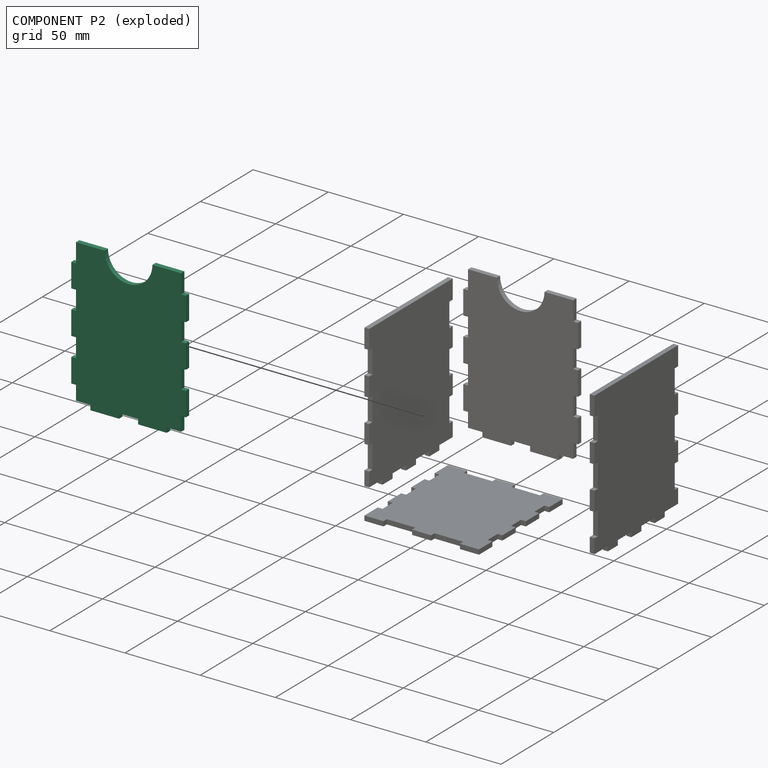
[diagram: component P2 — exploded]
COMPONENT P2 — recipe-attached (CADFS 00515016, mesh-verified: the recipe's output STEP matches this component's geometry to below the mesh-comparison resolution (tessellation chordal tolerance ~0.187 mm)).
Held by: FASTENED mate "Fastened 3" to P3; FASTENED mate "Fastened 3" to P3.
Construction recipe (FeatureScript — the CAD program that rebuilds this solid; sketch coordinates are in the units given by the * unit suffixes, e.g. mm):

FeatureScript 1511;
import(path : "onshape/std/geometry.fs", version : "1511.0");
import(path : "onshape/std/common.fs", version : "1511.0");
const mm = millimeter;
const VERTEX = EntityType.VERTEX;
const EDGE = EntityType.EDGE;
const FACE = EntityType.FACE;
const BODY = EntityType.BODY;
function v(x, y){return vector(x, y);}
function OD(order){return orderDisambiguation(order);}
function OSD(set){return originalSetDisambiguation(set);}
function TD(topology){return topologyDisambiguation(topology);}
function TDD(query){return trueDependencyDisambiguation(query);}
function sQuery(a, b, c) {return sketchEntityQuery(a, b, c);}

annotation { "Feature Type Name" : "Feature", "Feature Type Description" : "" }
export const myFeature = defineFeature(function(context is Context, id is Id, definition is map)
    precondition{}
    {
        {
            var Q0;
            Q0=qCreatedBy(makeId("Front.planeOp"),FACE);
            var sketch = newSketch(context, id + "F0", { "sketchPlane" : qUnion([Q0])});
            skLineSegment(sketch, "E0.bottom", {"start": v(-38.1, 49.21) * mm, "end": v(38.1, 49.21) * mm});
            skLineSegment(sketch, "E0.top", {"start": v(-38.1, -49.21) * mm, "end": v(38.1, -49.21) * mm});
            skLineSegment(sketch, "E0.left", {"start": v(-38.1, 49.21) * mm, "end": v(-38.1, -49.21) * mm});
            skLineSegment(sketch, "E0.right", {"start": v(38.1, 49.21) * mm, "end": v(38.1, -49.21) * mm});
            skSolve(sketch);
        }
        {
            var Q0;
            Q0=makeQuery(id+"F0.imprint","IMPRINT",FACE,{"disambiguationData":[TD([[makeQuery(id+"F0.imprint","IMPRINT",EDGE,{"derivedFrom":sQuery(id+"F0.wireOp",EDGE,"E0.bottom")}),-1.0]])]});
            extrude(context, id + "F1", {"entities" : qUnion([Q0]), "depth" : 3.17 * mm, "offsetDistance" : 25.4 * mm});
        }
        {
            var Q0;
            Q0=makeQuery(id+"F1.opExtrude","CAP_FACE",FACE,{"disambiguationData":[OSD([sQuery(id+"F0.wireOp",EDGE,"E0.bottom"),sQuery(id+"F0.wireOp",EDGE,"E0.top"),sQuery(id+"F0.wireOp",EDGE,"E0.left"),sQuery(id+"F0.wireOp",EDGE,"E0.right")])],"isStart":false});
            var sketch = newSketch(context, id + "F2", { "sketchPlane" : qUnion([Q0])});
            skLineSegment(sketch, "E1.bottom", {"start": v(-38.1, 49.21) * mm, "end": v(-25.4, 49.21) * mm});
            skLineSegment(sketch, "E1.top", {"start": v(-38.1, 46.04) * mm, "end": v(-25.4, 46.04) * mm});
            skLineSegment(sketch, "E1.left", {"start": v(-38.1, 49.21) * mm, "end": v(-38.1, 46.04) * mm});
            skLineSegment(sketch, "E1.right", {"start": v(-25.4, 49.21) * mm, "end": v(-25.4, 46.04) * mm});
            skLineSegment(sketch, "E2.1.0.0", {"start": v(6.35, 49.21) * mm, "end": v(6.35, 46.04) * mm});
            skLineSegment(sketch, "E2.1.0.1", {"start": v(-6.35, 49.21) * mm, "end": v(-6.35, 46.04) * mm});
            skLineSegment(sketch, "E2.1.0.2", {"start": v(-6.35, 46.04) * mm, "end": v(6.35, 46.04) * mm});
            skLineSegment(sketch, "E2.1.0.3", {"start": v(-6.35, 49.21) * mm, "end": v(6.35, 49.21) * mm});
            skLineSegment(sketch, "E2.direction1", {"start": v(-38.1, 46.04) * mm, "end": v(-6.35, 46.04) * mm, "construction": true});
            skLineSegment(sketch, "E3.0.2.0", {"start": v(38.1, 49.21) * mm, "end": v(38.1, 46.04) * mm});
            skLineSegment(sketch, "E3.3.2.0", {"start": v(25.4, 49.21) * mm, "end": v(25.4, 46.04) * mm});
            skLineSegment(sketch, "E3.6.2.0", {"start": v(25.4, 46.04) * mm, "end": v(38.1, 46.04) * mm});
            skLineSegment(sketch, "E3.9.2.0", {"start": v(25.4, 49.21) * mm, "end": v(38.1, 49.21) * mm});
            skSolve(sketch);
        }
        {
            var Q0;
            Q0 = qSketchRegion(id + "F2", true);
            extrude(context, id + "F3", {"entities" : qUnion([Q0]), "operationType" : NewBodyOperationType.REMOVE, "endBound" : BoundingType.THROUGH_ALL, "oppositeDirection" : true, "depth" : 25.4 * mm, "offsetDistance" : 25.4 * mm});
        }
        {
            var Q0;
            Q0=makeQuery(id+"F1.opExtrude","CAP_FACE",FACE,{"disambiguationData":[OSD([sQuery(id+"F0.wireOp",EDGE,"E0.bottom"),sQuery(id+"F0.wireOp",EDGE,"E0.top"),sQuery(id+"F0.wireOp",EDGE,"E0.left"),sQuery(id+"F0.wireOp",EDGE,"E0.right")])],"isStart":false});
            var sketch = newSketch(context, id + "F4", { "sketchPlane" : qUnion([Q0])});
            skLineSegment(sketch, "E4.bottom", {"start": v(-38.1, 49.21) * mm, "end": v(-34.93, 49.21) * mm});
            skLineSegment(sketch, "E4.top", {"start": v(-38.1, 36.51) * mm, "end": v(-34.93, 36.51) * mm});
            skLineSegment(sketch, "E4.left", {"start": v(-38.1, 49.21) * mm, "end": v(-38.1, 36.51) * mm});
            skLineSegment(sketch, "E4.right", {"start": v(-34.93, 49.21) * mm, "end": v(-34.93, 36.51) * mm});
            skLineSegment(sketch, "E5.0.1.0", {"start": v(-38.1, 20.64) * mm, "end": v(-34.93, 20.64) * mm});
            skLineSegment(sketch, "E5.0.1.1", {"start": v(-38.1, 7.94) * mm, "end": v(-34.93, 7.94) * mm});
            skLineSegment(sketch, "E5.0.1.2", {"start": v(-38.1, 20.64) * mm, "end": v(-38.1, 7.94) * mm});
            skLineSegment(sketch, "E5.0.1.3", {"start": v(-34.93, 20.64) * mm, "end": v(-34.93, 7.94) * mm});
            skLineSegment(sketch, "E5.0.2.0", {"start": v(-38.1, -7.94) * mm, "end": v(-34.93, -7.94) * mm});
            skLineSegment(sketch, "E5.0.2.1", {"start": v(-38.1, -20.64) * mm, "end": v(-34.93, -20.64) * mm});
            skLineSegment(sketch, "E5.0.2.2", {"start": v(-38.1, -7.94) * mm, "end": v(-38.1, -20.64) * mm});
            skLineSegment(sketch, "E5.0.2.3", {"start": v(-34.93, -7.94) * mm, "end": v(-34.93, -20.64) * mm});
            skLineSegment(sketch, "E5.0.3.0", {"start": v(-38.1, -36.51) * mm, "end": v(-34.93, -36.51) * mm});
            skLineSegment(sketch, "E5.0.3.1", {"start": v(-38.1, -49.21) * mm, "end": v(-34.93, -49.21) * mm});
            skLineSegment(sketch, "E5.0.3.2", {"start": v(-38.1, -36.51) * mm, "end": v(-38.1, -49.21) * mm});
            skLineSegment(sketch, "E5.0.3.3", {"start": v(-34.93, -36.51) * mm, "end": v(-34.93, -49.21) * mm});
            skLineSegment(sketch, "E5.direction1", {"start": v(-38.1, 36.51) * mm, "end": v(-2.13, 36.51) * mm, "construction": true});
            skLineSegment(sketch, "E5.direction2", {"start": v(-38.1, 36.51) * mm, "end": v(-38.1, 7.94) * mm, "construction": true});
            skLineSegment(sketch, "E6", {"start": v(0, 46.04) * mm, "end": v(0, -49.21) * mm, "construction": true});
            skLineSegment(sketch, "E7.MirrorCS", {"start": v(38.1, -36.51) * mm, "end": v(34.92, -36.51) * mm});
            skLineSegment(sketch, "E8.MirrorCS", {"start": v(38.1, 20.64) * mm, "end": v(34.92, 20.64) * mm});
            skLineSegment(sketch, "E9.MirrorCS", {"start": v(38.1, -20.64) * mm, "end": v(34.92, -20.64) * mm});
            skLineSegment(sketch, "E10.MirrorCS", {"start": v(38.1, 49.21) * mm, "end": v(34.92, 49.21) * mm});
            skLineSegment(sketch, "E11.MirrorCS", {"start": v(38.1, 36.51) * mm, "end": v(34.92, 36.51) * mm});
            skLineSegment(sketch, "E12.MirrorCS", {"start": v(38.1, -49.21) * mm, "end": v(34.92, -49.21) * mm});
            skLineSegment(sketch, "E13.MirrorCS", {"start": v(38.1, -7.94) * mm, "end": v(34.92, -7.94) * mm});
            skLineSegment(sketch, "E14.MirrorCS", {"start": v(38.1, 7.94) * mm, "end": v(34.92, 7.94) * mm});
            skLineSegment(sketch, "E15.MirrorCS", {"start": v(38.1, 20.64) * mm, "end": v(38.1, 7.94) * mm});
            skLineSegment(sketch, "E16.MirrorCS", {"start": v(38.1, -36.51) * mm, "end": v(38.1, -49.21) * mm});
            skLineSegment(sketch, "E17.MirrorCS", {"start": v(38.1, 49.21) * mm, "end": v(38.1, 36.51) * mm});
            skLineSegment(sketch, "E18.MirrorCS", {"start": v(38.1, 36.51) * mm, "end": v(38.1, 7.94) * mm, "construction": true});
            skLineSegment(sketch, "E19.MirrorCS", {"start": v(38.1, 36.51) * mm, "end": v(2.13, 36.51) * mm, "construction": true});
            skLineSegment(sketch, "E20.MirrorCS", {"start": v(34.92, -7.94) * mm, "end": v(34.92, -20.64) * mm});
            skLineSegment(sketch, "E21.MirrorCS", {"start": v(34.92, 49.21) * mm, "end": v(34.92, 36.51) * mm});
            skLineSegment(sketch, "E22.MirrorCS", {"start": v(38.1, -7.94) * mm, "end": v(38.1, -20.64) * mm});
            skLineSegment(sketch, "E23.MirrorCS", {"start": v(34.92, 20.64) * mm, "end": v(34.92, 7.94) * mm});
            skLineSegment(sketch, "E24.MirrorCS", {"start": v(34.92, -36.51) * mm, "end": v(34.92, -49.21) * mm});
            skSolve(sketch);
        }
        {
            var Q0;
            Q0 = qSketchRegion(id + "F4", true);
            extrude(context, id + "F5", {"entities" : qUnion([Q0]), "operationType" : NewBodyOperationType.REMOVE, "endBound" : BoundingType.THROUGH_ALL, "oppositeDirection" : true, "depth" : 25.4 * mm, "offsetDistance" : 25.4 * mm});
        }
        {
            var Q0;
            Q0=makeQuery(id+"F1.opExtrude","CAP_FACE",FACE,{"disambiguationData":[OSD([sQuery(id+"F0.wireOp",EDGE,"E0.bottom"),sQuery(id+"F0.wireOp",EDGE,"E0.top"),sQuery(id+"F0.wireOp",EDGE,"E0.left"),sQuery(id+"F0.wireOp",EDGE,"E0.right")])],"isStart":false});
            var sketch = newSketch(context, id + "F6", { "sketchPlane" : qUnion([Q0])});
            skEllipse(sketch, "E25", {"center": v(0, -49.21) * mm, "majorRadius": 15.88 * mm, "minorRadius": 15.88 * mm, "majorAxis": v(1, 0)});
            skSolve(sketch);
        }
        {
            var Q0;
            Q0 = qSketchRegion(id + "F6", true);
            extrude(context, id + "F7", {"entities" : qUnion([Q0]), "operationType" : NewBodyOperationType.REMOVE, "endBound" : BoundingType.THROUGH_ALL, "oppositeDirection" : true, "depth" : 25.4 * mm, "offsetDistance" : 25.4 * mm});
        }
    });
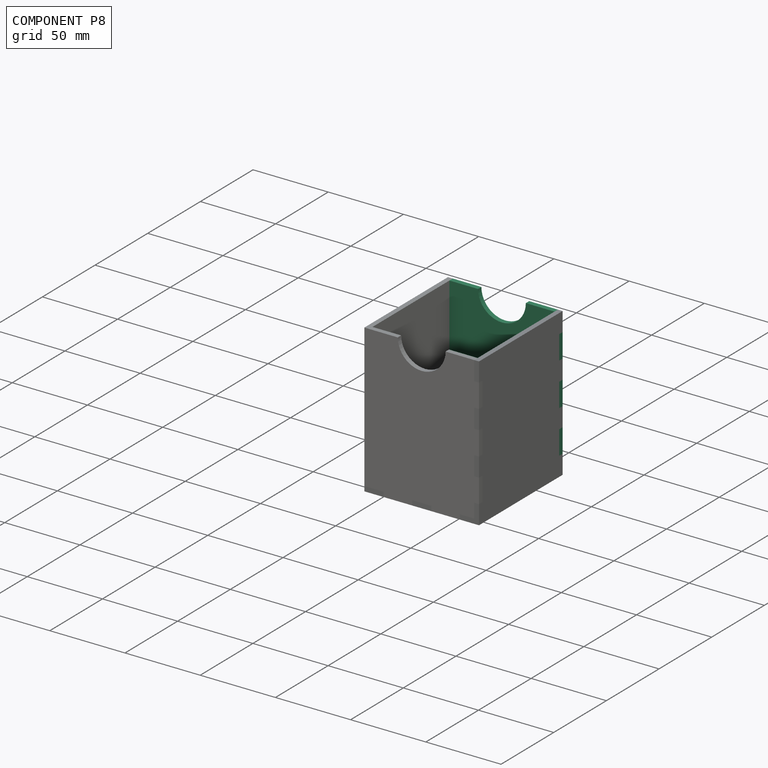
[diagram: component P8 — assembled]
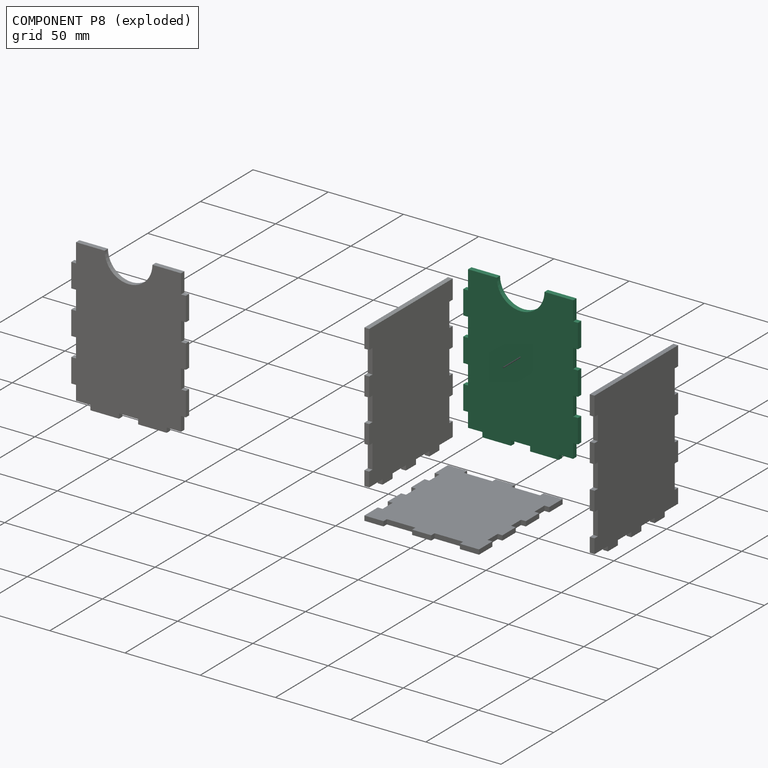
[diagram: component P8 — exploded]
COMPONENT P8 — same part as P2 (CADFS 00515016); its construction recipe is shown at P2.
Held by: FASTENED mate "Fastened 2" to P3; FASTENED mate "Fastened 4" to P5; FASTENED mate "Fastened 1" to P4; FASTENED mate "Fastened 1" to P4; FASTENED mate "Fastened 4" to P5; FASTENED mate "Fastened 2" to P3.
